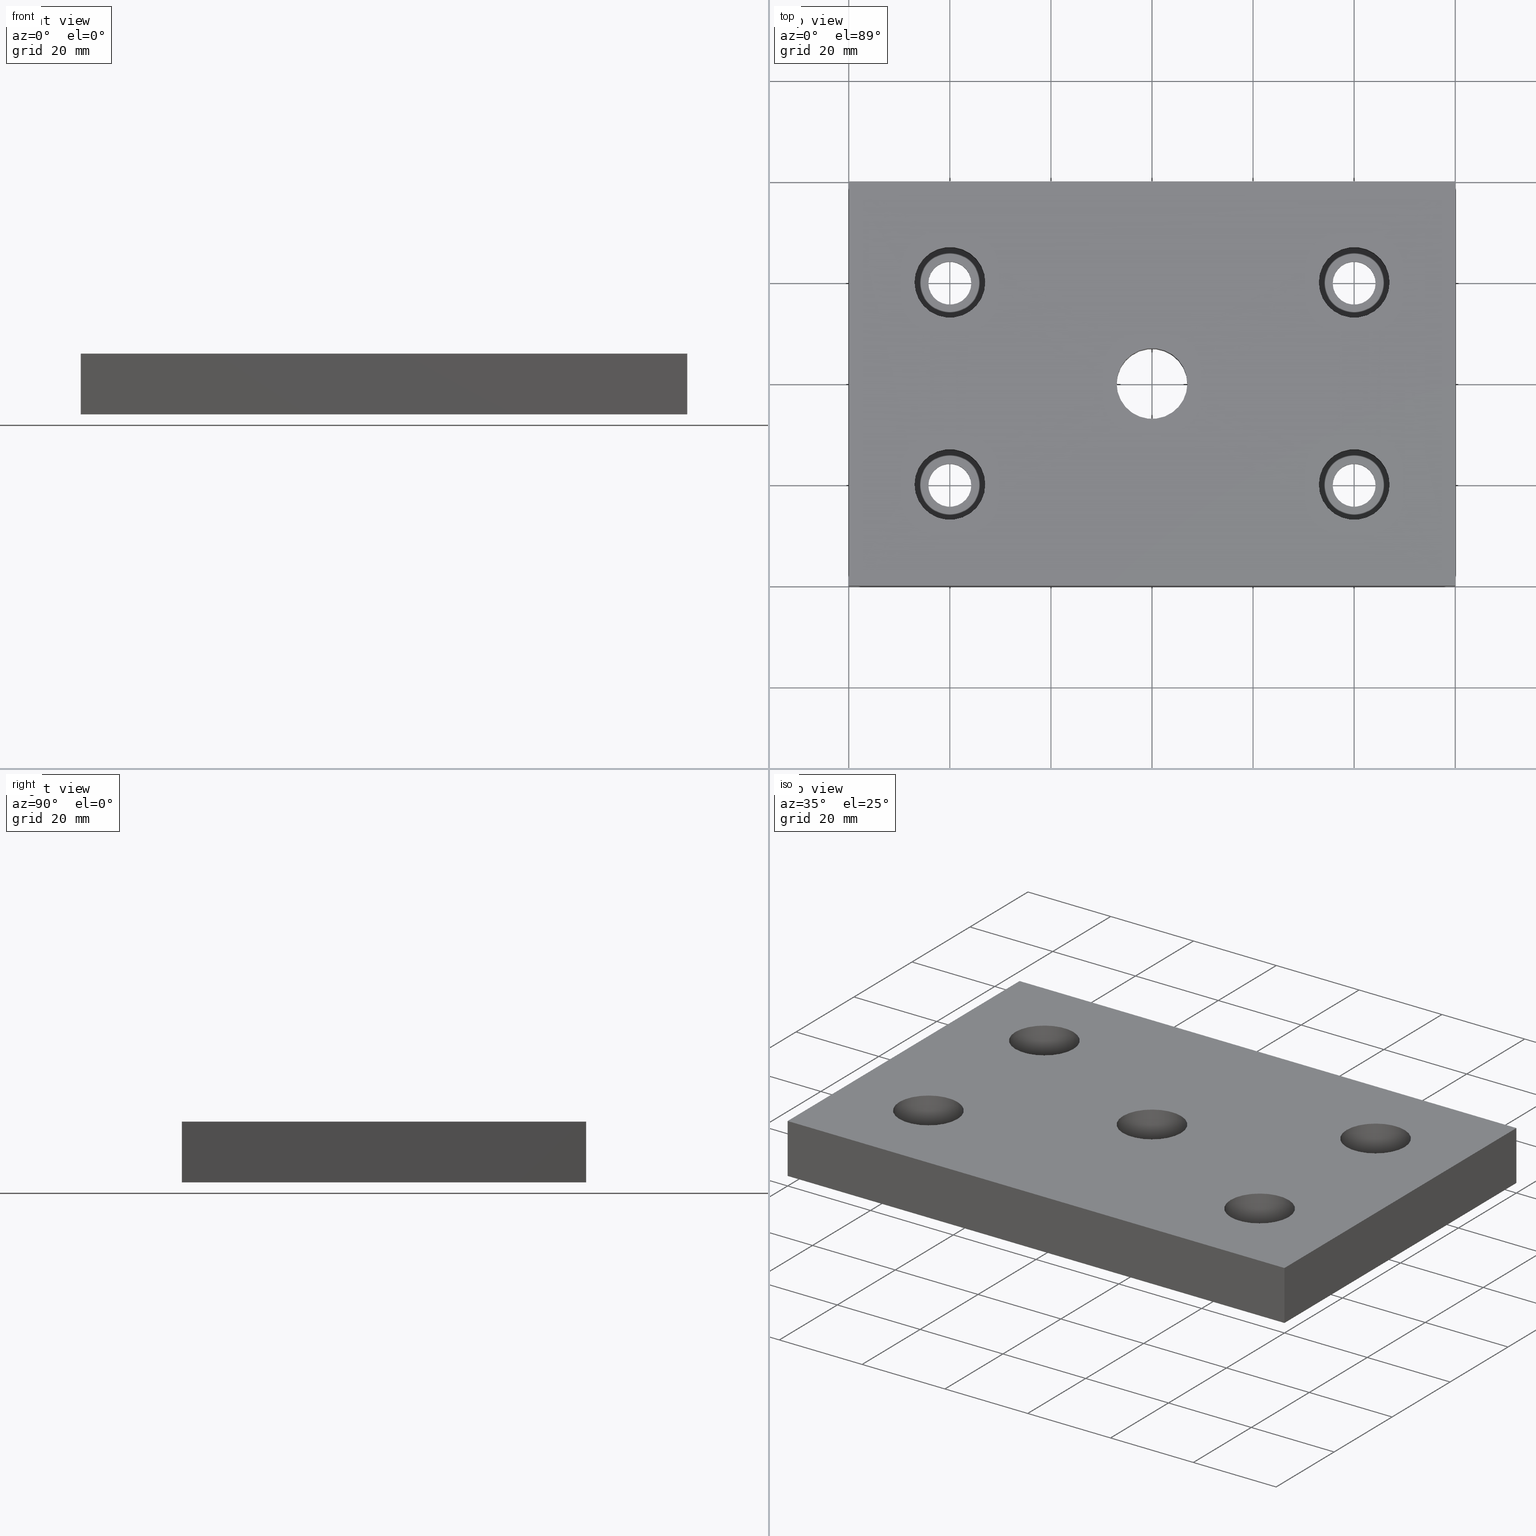
[diagram: canonical four-view strip — front | top / right | iso, engineering-drawing reading convention]
A machine part, canonical four-view strip (front | top / right | iso — engineering-drawing reading convention). The complete STEP part file that produces these views, byte-faithful:
ISO-10303-21;
HEADER;
/****************************************************************
 * Generated by software with PDE/Lib inside                    *
 * PDElib Version v4.4, created Mon 02/23/2004                  *
 * International Technegroup Inc. (www.iti-oh.com)              *
 ****************************************************************/
FILE_DESCRIPTION(('STEP AP203'),'2;1');
FILE_NAME('31.009.00.stp','2011-03-21T16:23:46',(''),(''),'2009.3.110','THINKDESIGN','');
FILE_SCHEMA(('CONFIG_CONTROL_DESIGN'));
ENDSEC;
DATA;
#2=CARTESIAN_POINT('',(59.999986679760013,-39.999991119839706,12.0));
#3=DIRECTION('',(-1.0,0.0,0.0));
#4=DIRECTION('',(0.0,1.0,0.0));
#5=AXIS2_PLACEMENT_3D('',#2,#3,#4);
#6=PLANE('',#5);
#7=CARTESIAN_POINT('',(59.999986679760013,-39.999991119839706,12.0));
#8=VERTEX_POINT('',#7);
#9=CARTESIAN_POINT('',(59.999986679760013,-39.999991119839706,0.0));
#10=VERTEX_POINT('',#9);
#11=CARTESIAN_POINT('',(59.999986679760013,-39.999991119839706,12.0));
#12=DIRECTION('',(0.0,0.0,-1.0));
#13=VECTOR('',#12,12.0);
#14=LINE('',#11,#13);
#15=EDGE_CURVE('',#8,#10,#14,.T.);
#16=ORIENTED_EDGE('',*,*,#15,.T.);
#17=CARTESIAN_POINT('',(59.999986679760013,39.999991119840161,0.0));
#18=VERTEX_POINT('',#17);
#19=CARTESIAN_POINT('',(59.999986679760013,-39.999991119839706,0.0));
#20=DIRECTION('',(0.0,1.0,0.0));
#21=VECTOR('',#20,79.999982239679866);
#22=LINE('',#19,#21);
#23=EDGE_CURVE('',#10,#18,#22,.T.);
#24=ORIENTED_EDGE('',*,*,#23,.T.);
#25=CARTESIAN_POINT('',(59.999986679760013,39.999991119840161,12.0));
#26=VERTEX_POINT('',#25);
#27=CARTESIAN_POINT('',(59.999986679760013,39.999991119840161,12.0));
#28=DIRECTION('',(0.0,0.0,-1.0));
#29=VECTOR('',#28,12.0);
#30=LINE('',#27,#29);
#31=EDGE_CURVE('',#26,#18,#30,.T.);
#32=ORIENTED_EDGE('',*,*,#31,.F.);
#33=CARTESIAN_POINT('',(59.999986679760013,-39.999991119839706,12.0));
#34=DIRECTION('',(0.0,1.0,0.0));
#35=VECTOR('',#34,79.999982239679866);
#36=LINE('',#33,#35);
#37=EDGE_CURVE('',#8,#26,#36,.T.);
#38=ORIENTED_EDGE('',*,*,#37,.F.);
#39=EDGE_LOOP('',(#16,#24,#32,#38));
#40=FACE_OUTER_BOUND('',#39,.T.);
#41=ADVANCED_FACE('',(#40),#6,.F.);
#42=CARTESIAN_POINT('',(59.999986679760013,39.999991119840161,12.0));
#43=DIRECTION('',(0.0,-1.0,0.0));
#44=DIRECTION('',(-1.0,0.0,0.0));
#45=AXIS2_PLACEMENT_3D('',#42,#43,#44);
#46=PLANE('',#45);
#47=ORIENTED_EDGE('',*,*,#31,.T.);
#48=CARTESIAN_POINT('',(-59.999986679760013,39.999991119840161,0.0));
#49=VERTEX_POINT('',#48);
#50=CARTESIAN_POINT('',(59.999986679760013,39.999991119840161,0.0));
#51=DIRECTION('',(-1.0,0.0,0.0));
#52=VECTOR('',#51,119.999973359520030);
#53=LINE('',#50,#52);
#54=EDGE_CURVE('',#18,#49,#53,.T.);
#55=ORIENTED_EDGE('',*,*,#54,.T.);
#56=CARTESIAN_POINT('',(-59.999986679760013,39.999991119840161,12.0));
#57=VERTEX_POINT('',#56);
#58=CARTESIAN_POINT('',(-59.999986679760013,39.999991119840161,12.0));
#59=DIRECTION('',(0.0,0.0,-1.0));
#60=VECTOR('',#59,12.0);
#61=LINE('',#58,#60);
#62=EDGE_CURVE('',#57,#49,#61,.T.);
#63=ORIENTED_EDGE('',*,*,#62,.F.);
#64=CARTESIAN_POINT('',(59.999986679760013,39.999991119840161,12.0));
#65=DIRECTION('',(-1.0,0.0,0.0));
#66=VECTOR('',#65,119.999973359520030);
#67=LINE('',#64,#66);
#68=EDGE_CURVE('',#26,#57,#67,.T.);
#69=ORIENTED_EDGE('',*,*,#68,.F.);
#70=EDGE_LOOP('',(#47,#55,#63,#69));
#71=FACE_OUTER_BOUND('',#70,.T.);
#72=ADVANCED_FACE('',(#71),#46,.F.);
#73=CARTESIAN_POINT('',(-59.999986679760013,39.999991119840161,12.0));
#74=DIRECTION('',(1.0,0.0,0.0));
#75=DIRECTION('',(0.0,-1.0,0.0));
#76=AXIS2_PLACEMENT_3D('',#73,#74,#75);
#77=PLANE('',#76);
#78=ORIENTED_EDGE('',*,*,#62,.T.);
#79=CARTESIAN_POINT('',(-59.999986679760013,-39.999991119839706,0.0));
#80=VERTEX_POINT('',#79);
#81=CARTESIAN_POINT('',(-59.999986679760013,39.999991119840161,0.0));
#82=DIRECTION('',(0.0,-1.0,0.0));
#83=VECTOR('',#82,79.999982239679866);
#84=LINE('',#81,#83);
#85=EDGE_CURVE('',#49,#80,#84,.T.);
#86=ORIENTED_EDGE('',*,*,#85,.T.);
#87=CARTESIAN_POINT('',(-59.999986679760013,-39.999991119839706,12.0));
#88=VERTEX_POINT('',#87);
#89=CARTESIAN_POINT('',(-59.999986679760013,-39.999991119839706,12.0));
#90=DIRECTION('',(0.0,0.0,-1.0));
#91=VECTOR('',#90,12.0);
#92=LINE('',#89,#91);
#93=EDGE_CURVE('',#88,#80,#92,.T.);
#94=ORIENTED_EDGE('',*,*,#93,.F.);
#95=CARTESIAN_POINT('',(-59.999986679760013,39.999991119840161,12.0));
#96=DIRECTION('',(0.0,-1.0,0.0));
#97=VECTOR('',#96,79.999982239679866);
#98=LINE('',#95,#97);
#99=EDGE_CURVE('',#57,#88,#98,.T.);
#100=ORIENTED_EDGE('',*,*,#99,.F.);
#101=EDGE_LOOP('',(#78,#86,#94,#100));
#102=FACE_OUTER_BOUND('',#101,.T.);
#103=ADVANCED_FACE('',(#102),#77,.F.);
#104=CARTESIAN_POINT('',(-59.999986679760013,-39.999991119839706,12.0));
#105=DIRECTION('',(0.0,1.0,0.0));
#106=DIRECTION('',(1.0,0.0,0.0));
#107=AXIS2_PLACEMENT_3D('',#104,#105,#106);
#108=PLANE('',#107);
#109=ORIENTED_EDGE('',*,*,#93,.T.);
#110=CARTESIAN_POINT('',(-59.999986679760013,-39.999991119839706,0.0));
#111=DIRECTION('',(1.0,0.0,0.0));
#112=VECTOR('',#111,119.999973359520030);
#113=LINE('',#110,#112);
#114=EDGE_CURVE('',#80,#10,#113,.T.);
#115=ORIENTED_EDGE('',*,*,#114,.T.);
#116=ORIENTED_EDGE('',*,*,#15,.F.);
#117=CARTESIAN_POINT('',(-59.999986679760013,-39.999991119839706,12.0));
#118=DIRECTION('',(1.0,0.0,0.0));
#119=VECTOR('',#118,119.999973359520030);
#120=LINE('',#117,#119);
#121=EDGE_CURVE('',#88,#8,#120,.T.);
#122=ORIENTED_EDGE('',*,*,#121,.F.);
#123=EDGE_LOOP('',(#109,#115,#116,#122));
#124=FACE_OUTER_BOUND('',#123,.T.);
#125=ADVANCED_FACE('',(#124),#108,.F.);
#126=CARTESIAN_POINT('',(-71.999988748835221,-47.999994076735220,12.0));
#127=DIRECTION('',(0.0,0.0,1.0));
#128=DIRECTION('',(1.0,0.0,0.0));
#129=AXIS2_PLACEMENT_3D('',#126,#127,#128);
#130=PLANE('',#129);
#131=ORIENTED_EDGE('',*,*,#37,.T.);
#132=ORIENTED_EDGE('',*,*,#68,.T.);
#133=ORIENTED_EDGE('',*,*,#99,.T.);
#134=ORIENTED_EDGE('',*,*,#121,.T.);
#135=EDGE_LOOP('',(#131,#132,#133,#134));
#136=FACE_OUTER_BOUND('',#135,.T.);
#137=CARTESIAN_POINT('',(-7.0,0.0,12.0));
#138=VERTEX_POINT('',#137);
#139=CARTESIAN_POINT('',(7.0,0.0,12.0));
#140=VERTEX_POINT('',#139);
#141=CARTESIAN_POINT('',(0.0,0.0,12.0));
#142=DIRECTION('',(0.0,0.0,1.0));
#143=DIRECTION('',(1.0,0.0,0.0));
#144=AXIS2_PLACEMENT_3D('',#141,#142,#143);
#145=CIRCLE('',#144,7.0);
#146=EDGE_CURVE('',#138,#140,#145,.T.);
#147=ORIENTED_EDGE('',*,*,#146,.F.);
#148=CARTESIAN_POINT('',(0.0,0.0,12.0));
#149=DIRECTION('',(0.0,0.0,1.0));
#150=DIRECTION('',(1.0,0.0,0.0));
#151=AXIS2_PLACEMENT_3D('',#148,#149,#150);
#152=CIRCLE('',#151,7.0);
#153=EDGE_CURVE('',#140,#138,#152,.T.);
#154=ORIENTED_EDGE('',*,*,#153,.F.);
#155=EDGE_LOOP('',(#147,#154));
#156=FACE_BOUND('',#155,.T.);
#157=CARTESIAN_POINT('',(-46.999991119840161,19.999995559920080,12.0));
#158=VERTEX_POINT('',#157);
#159=CARTESIAN_POINT('',(-32.999991119840161,19.999995559920080,11.999999999999998));
#160=VERTEX_POINT('',#159);
#161=CARTESIAN_POINT('',(-39.999991119840161,19.999995559920080,12.0));
#162=DIRECTION('',(0.0,6.123234E-017,1.0));
#163=DIRECTION('',(1.0,0.0,0.0));
#164=AXIS2_PLACEMENT_3D('',#161,#162,#163);
#165=CIRCLE('',#164,7.0);
#166=EDGE_CURVE('',#158,#160,#165,.T.);
#167=ORIENTED_EDGE('',*,*,#166,.F.);
#168=CARTESIAN_POINT('',(-39.999991119840161,19.999995559920080,12.0));
#169=DIRECTION('',(0.0,6.123234E-017,1.0));
#170=DIRECTION('',(1.0,0.0,0.0));
#171=AXIS2_PLACEMENT_3D('',#168,#169,#170);
#172=CIRCLE('',#171,7.0);
#173=EDGE_CURVE('',#160,#158,#172,.T.);
#174=ORIENTED_EDGE('',*,*,#173,.F.);
#175=EDGE_LOOP('',(#167,#174));
#176=FACE_BOUND('',#175,.T.);
#177=CARTESIAN_POINT('',(32.999991119839933,19.999995559920080,12.0));
#178=VERTEX_POINT('',#177);
#179=CARTESIAN_POINT('',(46.999991119839933,19.999995559920080,11.999999999999998));
#180=VERTEX_POINT('',#179);
#181=CARTESIAN_POINT('',(39.999991119839933,19.999995559920080,12.0));
#182=DIRECTION('',(0.0,6.123234E-017,1.0));
#183=DIRECTION('',(1.0,0.0,0.0));
#184=AXIS2_PLACEMENT_3D('',#181,#182,#183);
#185=CIRCLE('',#184,7.0);
#186=EDGE_CURVE('',#178,#180,#185,.T.);
#187=ORIENTED_EDGE('',*,*,#186,.F.);
#188=CARTESIAN_POINT('',(39.999991119839933,19.999995559920080,12.0));
#189=DIRECTION('',(0.0,6.123234E-017,1.0));
#190=DIRECTION('',(1.0,0.0,0.0));
#191=AXIS2_PLACEMENT_3D('',#188,#189,#190);
#192=CIRCLE('',#191,7.0);
#193=EDGE_CURVE('',#180,#178,#192,.T.);
#194=ORIENTED_EDGE('',*,*,#193,.F.);
#195=EDGE_LOOP('',(#187,#194));
#196=FACE_BOUND('',#195,.T.);
#197=CARTESIAN_POINT('',(32.999991119839933,-19.999995559919626,12.0));
#198=VERTEX_POINT('',#197);
#199=CARTESIAN_POINT('',(46.999991119839933,-19.999995559919626,11.999999999999998));
#200=VERTEX_POINT('',#199);
#201=CARTESIAN_POINT('',(39.999991119839933,-19.999995559919626,12.0));
#202=DIRECTION('',(0.0,6.123234E-017,1.0));
#203=DIRECTION('',(1.0,0.0,0.0));
#204=AXIS2_PLACEMENT_3D('',#201,#202,#203);
#205=CIRCLE('',#204,7.0);
#206=EDGE_CURVE('',#198,#200,#205,.T.);
#207=ORIENTED_EDGE('',*,*,#206,.F.);
#208=CARTESIAN_POINT('',(39.999991119839933,-19.999995559919626,12.0));
#209=DIRECTION('',(0.0,6.123234E-017,1.0));
#210=DIRECTION('',(1.0,0.0,0.0));
#211=AXIS2_PLACEMENT_3D('',#208,#209,#210);
#212=CIRCLE('',#211,7.0);
#213=EDGE_CURVE('',#200,#198,#212,.T.);
#214=ORIENTED_EDGE('',*,*,#213,.F.);
#215=EDGE_LOOP('',(#207,#214));
#216=FACE_BOUND('',#215,.T.);
#217=CARTESIAN_POINT('',(-46.999991119840161,-19.999995559919626,12.0));
#218=VERTEX_POINT('',#217);
#219=CARTESIAN_POINT('',(-32.999991119840161,-19.999995559919626,11.999999999999998));
#220=VERTEX_POINT('',#219);
#221=CARTESIAN_POINT('',(-39.999991119840161,-19.999995559919626,12.0));
#222=DIRECTION('',(0.0,6.123234E-017,1.0));
#223=DIRECTION('',(1.0,0.0,0.0));
#224=AXIS2_PLACEMENT_3D('',#221,#222,#223);
#225=CIRCLE('',#224,7.0);
#226=EDGE_CURVE('',#218,#220,#225,.T.);
#227=ORIENTED_EDGE('',*,*,#226,.F.);
#228=CARTESIAN_POINT('',(-39.999991119840161,-19.999995559919626,12.0));
#229=DIRECTION('',(0.0,6.123234E-017,1.0));
#230=DIRECTION('',(1.0,0.0,0.0));
#231=AXIS2_PLACEMENT_3D('',#228,#229,#230);
#232=CIRCLE('',#231,7.0);
#233=EDGE_CURVE('',#220,#218,#232,.T.);
#234=ORIENTED_EDGE('',*,*,#233,.F.);
#235=EDGE_LOOP('',(#227,#234));
#236=FACE_BOUND('',#235,.T.);
#237=ADVANCED_FACE('',(#136,#156,#176,#196,#216,#236),#130,.T.);
#238=CARTESIAN_POINT('',(-71.999988748835221,-47.999994076735220,0.0));
#239=DIRECTION('',(0.0,0.0,1.0));
#240=DIRECTION('',(1.0,0.0,0.0));
#241=AXIS2_PLACEMENT_3D('',#238,#239,#240);
#242=PLANE('',#241);
#243=ORIENTED_EDGE('',*,*,#114,.F.);
#244=ORIENTED_EDGE('',*,*,#85,.F.);
#245=ORIENTED_EDGE('',*,*,#54,.F.);
#246=ORIENTED_EDGE('',*,*,#23,.F.);
#247=EDGE_LOOP('',(#243,#244,#245,#246));
#248=FACE_OUTER_BOUND('',#247,.T.);
#249=CARTESIAN_POINT('',(-7.0,0.0,0.0));
#250=VERTEX_POINT('',#249);
#251=CARTESIAN_POINT('',(7.0,0.0,0.0));
#252=VERTEX_POINT('',#251);
#253=CARTESIAN_POINT('',(0.0,0.0,0.0));
#254=DIRECTION('',(0.0,0.0,-1.0));
#255=DIRECTION('',(1.0,0.0,0.0));
#256=AXIS2_PLACEMENT_3D('',#253,#254,#255);
#257=CIRCLE('',#256,7.0);
#258=EDGE_CURVE('',#250,#252,#257,.T.);
#259=ORIENTED_EDGE('',*,*,#258,.F.);
#260=CARTESIAN_POINT('',(0.0,0.0,0.0));
#261=DIRECTION('',(0.0,0.0,-1.0));
#262=DIRECTION('',(1.0,0.0,0.0));
#263=AXIS2_PLACEMENT_3D('',#260,#261,#262);
#264=CIRCLE('',#263,7.0);
#265=EDGE_CURVE('',#252,#250,#264,.T.);
#266=ORIENTED_EDGE('',*,*,#265,.F.);
#267=EDGE_LOOP('',(#259,#266));
#268=FACE_BOUND('',#267,.T.);
#269=CARTESIAN_POINT('',(-35.749991119840161,19.999995559920080,0.0));
#270=VERTEX_POINT('',#269);
#271=CARTESIAN_POINT('',(-44.249991119840161,19.999995559920080,0.0));
#272=VERTEX_POINT('',#271);
#273=CARTESIAN_POINT('',(-39.999991119840161,19.999995559920080,0.0));
#274=DIRECTION('',(0.0,6.123234E-017,1.0));
#275=DIRECTION('',(1.0,0.0,0.0));
#276=AXIS2_PLACEMENT_3D('',#273,#274,#275);
#277=CIRCLE('',#276,4.250000000000000);
#278=EDGE_CURVE('',#270,#272,#277,.T.);
#279=ORIENTED_EDGE('',*,*,#278,.T.);
#280=CARTESIAN_POINT('',(-39.999991119840161,19.999995559920080,0.0));
#281=DIRECTION('',(0.0,6.123234E-017,1.0));
#282=DIRECTION('',(1.0,0.0,0.0));
#283=AXIS2_PLACEMENT_3D('',#280,#281,#282);
#284=CIRCLE('',#283,4.250000000000000);
#285=EDGE_CURVE('',#272,#270,#284,.T.);
#286=ORIENTED_EDGE('',*,*,#285,.T.);
#287=EDGE_LOOP('',(#279,#286));
#288=FACE_BOUND('',#287,.T.);
#289=CARTESIAN_POINT('',(44.249991119839933,19.999995559920080,0.0));
#290=VERTEX_POINT('',#289);
#291=CARTESIAN_POINT('',(35.749991119839933,19.999995559920080,0.0));
#292=VERTEX_POINT('',#291);
#293=CARTESIAN_POINT('',(39.999991119839933,19.999995559920080,0.0));
#294=DIRECTION('',(0.0,6.123234E-017,1.0));
#295=DIRECTION('',(1.0,0.0,0.0));
#296=AXIS2_PLACEMENT_3D('',#293,#294,#295);
#297=CIRCLE('',#296,4.250000000000000);
#298=EDGE_CURVE('',#290,#292,#297,.T.);
#299=ORIENTED_EDGE('',*,*,#298,.T.);
#300=CARTESIAN_POINT('',(39.999991119839933,19.999995559920080,0.0));
#301=DIRECTION('',(0.0,6.123234E-017,1.0));
#302=DIRECTION('',(1.0,0.0,0.0));
#303=AXIS2_PLACEMENT_3D('',#300,#301,#302);
#304=CIRCLE('',#303,4.250000000000000);
#305=EDGE_CURVE('',#292,#290,#304,.T.);
#306=ORIENTED_EDGE('',*,*,#305,.T.);
#307=EDGE_LOOP('',(#299,#306));
#308=FACE_BOUND('',#307,.T.);
#309=CARTESIAN_POINT('',(44.249991119839933,-19.999995559919626,0.0));
#310=VERTEX_POINT('',#309);
#311=CARTESIAN_POINT('',(35.749991119839933,-19.999995559919626,0.0));
#312=VERTEX_POINT('',#311);
#313=CARTESIAN_POINT('',(39.999991119839933,-19.999995559919626,0.0));
#314=DIRECTION('',(0.0,6.123234E-017,1.0));
#315=DIRECTION('',(1.0,0.0,0.0));
#316=AXIS2_PLACEMENT_3D('',#313,#314,#315);
#317=CIRCLE('',#316,4.250000000000000);
#318=EDGE_CURVE('',#310,#312,#317,.T.);
#319=ORIENTED_EDGE('',*,*,#318,.T.);
#320=CARTESIAN_POINT('',(39.999991119839933,-19.999995559919626,0.0));
#321=DIRECTION('',(0.0,6.123234E-017,1.0));
#322=DIRECTION('',(1.0,0.0,0.0));
#323=AXIS2_PLACEMENT_3D('',#320,#321,#322);
#324=CIRCLE('',#323,4.250000000000000);
#325=EDGE_CURVE('',#312,#310,#324,.T.);
#326=ORIENTED_EDGE('',*,*,#325,.T.);
#327=EDGE_LOOP('',(#319,#326));
#328=FACE_BOUND('',#327,.T.);
#329=CARTESIAN_POINT('',(-35.749991119840161,-19.999995559919626,0.0));
#330=VERTEX_POINT('',#329);
#331=CARTESIAN_POINT('',(-44.249991119840161,-19.999995559919626,0.0));
#332=VERTEX_POINT('',#331);
#333=CARTESIAN_POINT('',(-39.999991119840161,-19.999995559919626,0.0));
#334=DIRECTION('',(0.0,6.123234E-017,1.0));
#335=DIRECTION('',(1.0,0.0,0.0));
#336=AXIS2_PLACEMENT_3D('',#333,#334,#335);
#337=CIRCLE('',#336,4.250000000000000);
#338=EDGE_CURVE('',#330,#332,#337,.T.);
#339=ORIENTED_EDGE('',*,*,#338,.T.);
#340=CARTESIAN_POINT('',(-39.999991119840161,-19.999995559919626,0.0));
#341=DIRECTION('',(0.0,6.123234E-017,1.0));
#342=DIRECTION('',(1.0,0.0,0.0));
#343=AXIS2_PLACEMENT_3D('',#340,#341,#342);
#344=CIRCLE('',#343,4.250000000000000);
#345=EDGE_CURVE('',#332,#330,#344,.T.);
#346=ORIENTED_EDGE('',*,*,#345,.T.);
#347=EDGE_LOOP('',(#339,#346));
#348=FACE_BOUND('',#347,.T.);
#349=ADVANCED_FACE('',(#248,#268,#288,#308,#328,#348),#242,.F.);
#350=CARTESIAN_POINT('',(0.0,0.0,12.0));
#351=DIRECTION('',(0.0,0.0,1.0));
#352=DIRECTION('',(1.0,0.0,0.0));
#353=AXIS2_PLACEMENT_3D('',#350,#351,#352);
#354=CYLINDRICAL_SURFACE('',#353,7.0);
#355=CARTESIAN_POINT('',(7.0,0.0,12.0));
#356=DIRECTION('',(0.0,0.0,-1.0));
#357=VECTOR('',#356,12.0);
#358=LINE('',#355,#357);
#359=EDGE_CURVE('',#140,#252,#358,.T.);
#360=ORIENTED_EDGE('',*,*,#359,.T.);
#361=ORIENTED_EDGE('',*,*,#265,.T.);
#362=ORIENTED_EDGE('',*,*,#258,.T.);
#363=ORIENTED_EDGE('',*,*,#359,.F.);
#364=ORIENTED_EDGE('',*,*,#153,.T.);
#365=ORIENTED_EDGE('',*,*,#146,.T.);
#366=EDGE_LOOP('',(#360,#361,#362,#363,#364,#365));
#367=FACE_OUTER_BOUND('',#366,.T.);
#368=ADVANCED_FACE('',(#367),#354,.F.);
#369=CARTESIAN_POINT('',(-39.999991119840161,19.999995559920080,-1.209819030761725));
#370=DIRECTION('',(0.0,6.123234E-017,1.0));
#371=DIRECTION('',(1.0,0.0,0.0));
#372=AXIS2_PLACEMENT_3D('',#369,#370,#371);
#373=CYLINDRICAL_SURFACE('',#372,4.250000000000000);
#374=CARTESIAN_POINT('',(-35.749991119840161,19.999995559920080,3.999999999999998));
#375=VERTEX_POINT('',#374);
#376=CARTESIAN_POINT('',(-35.749991119840161,19.999995559920080,0.0));
#377=DIRECTION('',(0.0,0.0,1.0));
#378=VECTOR('',#377,3.999999999999998);
#379=LINE('',#376,#378);
#380=EDGE_CURVE('',#270,#375,#379,.T.);
#381=ORIENTED_EDGE('',*,*,#380,.F.);
#382=ORIENTED_EDGE('',*,*,#285,.F.);
#383=ORIENTED_EDGE('',*,*,#278,.F.);
#384=ORIENTED_EDGE('',*,*,#380,.T.);
#385=CARTESIAN_POINT('',(-44.249991119840161,19.999995559920080,4.000000000000000));
#386=VERTEX_POINT('',#385);
#387=CARTESIAN_POINT('',(-39.999991119840161,19.999995559920080,4.000000000000000));
#388=DIRECTION('',(0.0,6.123234E-017,1.0));
#389=DIRECTION('',(1.0,0.0,0.0));
#390=AXIS2_PLACEMENT_3D('',#387,#388,#389);
#391=CIRCLE('',#390,4.250000000000000);
#392=EDGE_CURVE('',#375,#386,#391,.T.);
#393=ORIENTED_EDGE('',*,*,#392,.T.);
#394=CARTESIAN_POINT('',(-39.999991119840161,19.999995559920080,4.000000000000000));
#395=DIRECTION('',(0.0,6.123234E-017,1.0));
#396=DIRECTION('',(1.0,0.0,0.0));
#397=AXIS2_PLACEMENT_3D('',#394,#395,#396);
#398=CIRCLE('',#397,4.250000000000000);
#399=EDGE_CURVE('',#386,#375,#398,.T.);
#400=ORIENTED_EDGE('',*,*,#399,.T.);
#401=EDGE_LOOP('',(#381,#382,#383,#384,#393,#400));
#402=FACE_OUTER_BOUND('',#401,.T.);
#403=ADVANCED_FACE('',(#402),#373,.F.);
#404=CARTESIAN_POINT('',(-53.999991119840161,5.999995559920080,4.000000000000001));
#405=DIRECTION('',(0.0,0.0,-1.0));
#406=DIRECTION('',(0.0,1.0,0.0));
#407=AXIS2_PLACEMENT_3D('',#404,#405,#406);
#408=PLANE('',#407);
#409=CARTESIAN_POINT('',(-32.999991119840161,19.999995559920080,4.0));
#410=VERTEX_POINT('',#409);
#411=CARTESIAN_POINT('',(-46.999991119840161,19.999995559920080,4.000000000000000));
#412=VERTEX_POINT('',#411);
#413=CARTESIAN_POINT('',(-39.999991119840161,19.999995559920080,4.000000000000000));
#414=DIRECTION('',(0.0,6.123234E-017,1.0));
#415=DIRECTION('',(1.0,0.0,0.0));
#416=AXIS2_PLACEMENT_3D('',#413,#414,#415);
#417=CIRCLE('',#416,7.0);
#418=EDGE_CURVE('',#410,#412,#417,.T.);
#419=ORIENTED_EDGE('',*,*,#418,.T.);
#420=CARTESIAN_POINT('',(-39.999991119840161,19.999995559920080,4.000000000000000));
#421=DIRECTION('',(0.0,6.123234E-017,1.0));
#422=DIRECTION('',(1.0,0.0,0.0));
#423=AXIS2_PLACEMENT_3D('',#420,#421,#422);
#424=CIRCLE('',#423,7.0);
#425=EDGE_CURVE('',#412,#410,#424,.T.);
#426=ORIENTED_EDGE('',*,*,#425,.T.);
#427=EDGE_LOOP('',(#419,#426));
#428=FACE_OUTER_BOUND('',#427,.T.);
#429=ORIENTED_EDGE('',*,*,#399,.F.);
#430=ORIENTED_EDGE('',*,*,#392,.F.);
#431=EDGE_LOOP('',(#429,#430));
#432=FACE_BOUND('',#431,.T.);
#433=ADVANCED_FACE('',(#428,#432),#408,.F.);
#434=CARTESIAN_POINT('',(-39.999991119840161,19.999995559920080,4.0));
#435=DIRECTION('',(0.0,6.123234E-017,1.0));
#436=DIRECTION('',(1.0,0.0,0.0));
#437=AXIS2_PLACEMENT_3D('',#434,#435,#436);
#438=CYLINDRICAL_SURFACE('',#437,7.0);
#439=CARTESIAN_POINT('',(-32.999991119840161,19.999995559920080,4.0));
#440=DIRECTION('',(0.0,0.0,1.0));
#441=VECTOR('',#440,7.999999999999998);
#442=LINE('',#439,#441);
#443=EDGE_CURVE('',#410,#160,#442,.T.);
#444=ORIENTED_EDGE('',*,*,#443,.T.);
#445=ORIENTED_EDGE('',*,*,#173,.T.);
#446=ORIENTED_EDGE('',*,*,#166,.T.);
#447=ORIENTED_EDGE('',*,*,#443,.F.);
#448=ORIENTED_EDGE('',*,*,#425,.F.);
#449=ORIENTED_EDGE('',*,*,#418,.F.);
#450=EDGE_LOOP('',(#444,#445,#446,#447,#448,#449));
#451=FACE_OUTER_BOUND('',#450,.T.);
#452=ADVANCED_FACE('',(#451),#438,.F.);
#453=CARTESIAN_POINT('',(39.999991119839933,19.999995559920080,-1.209819030761725));
#454=DIRECTION('',(0.0,6.123234E-017,1.0));
#455=DIRECTION('',(1.0,0.0,0.0));
#456=AXIS2_PLACEMENT_3D('',#453,#454,#455);
#457=CYLINDRICAL_SURFACE('',#456,4.250000000000000);
#458=CARTESIAN_POINT('',(44.249991119839933,19.999995559920080,3.999999999999998));
#459=VERTEX_POINT('',#458);
#460=CARTESIAN_POINT('',(44.249991119839933,19.999995559920080,0.0));
#461=DIRECTION('',(0.0,0.0,1.0));
#462=VECTOR('',#461,3.999999999999998);
#463=LINE('',#460,#462);
#464=EDGE_CURVE('',#290,#459,#463,.T.);
#465=ORIENTED_EDGE('',*,*,#464,.F.);
#466=ORIENTED_EDGE('',*,*,#305,.F.);
#467=ORIENTED_EDGE('',*,*,#298,.F.);
#468=ORIENTED_EDGE('',*,*,#464,.T.);
#469=CARTESIAN_POINT('',(35.749991119839933,19.999995559920080,4.000000000000000));
#470=VERTEX_POINT('',#469);
#471=CARTESIAN_POINT('',(39.999991119839933,19.999995559920080,4.000000000000000));
#472=DIRECTION('',(0.0,6.123234E-017,1.0));
#473=DIRECTION('',(1.0,0.0,0.0));
#474=AXIS2_PLACEMENT_3D('',#471,#472,#473);
#475=CIRCLE('',#474,4.250000000000000);
#476=EDGE_CURVE('',#459,#470,#475,.T.);
#477=ORIENTED_EDGE('',*,*,#476,.T.);
#478=CARTESIAN_POINT('',(39.999991119839933,19.999995559920080,4.000000000000000));
#479=DIRECTION('',(0.0,6.123234E-017,1.0));
#480=DIRECTION('',(1.0,0.0,0.0));
#481=AXIS2_PLACEMENT_3D('',#478,#479,#480);
#482=CIRCLE('',#481,4.250000000000000);
#483=EDGE_CURVE('',#470,#459,#482,.T.);
#484=ORIENTED_EDGE('',*,*,#483,.T.);
#485=EDGE_LOOP('',(#465,#466,#467,#468,#477,#484));
#486=FACE_OUTER_BOUND('',#485,.T.);
#487=ADVANCED_FACE('',(#486),#457,.F.);
#488=CARTESIAN_POINT('',(25.999991119839933,5.999995559920080,4.000000000000001));
#489=DIRECTION('',(0.0,0.0,-1.0));
#490=DIRECTION('',(0.0,1.0,0.0));
#491=AXIS2_PLACEMENT_3D('',#488,#489,#490);
#492=PLANE('',#491);
#493=CARTESIAN_POINT('',(46.999991119839933,19.999995559920080,4.0));
#494=VERTEX_POINT('',#493);
#495=CARTESIAN_POINT('',(32.999991119839933,19.999995559920080,4.000000000000000));
#496=VERTEX_POINT('',#495);
#497=CARTESIAN_POINT('',(39.999991119839933,19.999995559920080,4.000000000000000));
#498=DIRECTION('',(0.0,6.123234E-017,1.0));
#499=DIRECTION('',(1.0,0.0,0.0));
#500=AXIS2_PLACEMENT_3D('',#497,#498,#499);
#501=CIRCLE('',#500,7.0);
#502=EDGE_CURVE('',#494,#496,#501,.T.);
#503=ORIENTED_EDGE('',*,*,#502,.T.);
#504=CARTESIAN_POINT('',(39.999991119839933,19.999995559920080,4.000000000000000));
#505=DIRECTION('',(0.0,6.123234E-017,1.0));
#506=DIRECTION('',(1.0,0.0,0.0));
#507=AXIS2_PLACEMENT_3D('',#504,#505,#506);
#508=CIRCLE('',#507,7.0);
#509=EDGE_CURVE('',#496,#494,#508,.T.);
#510=ORIENTED_EDGE('',*,*,#509,.T.);
#511=EDGE_LOOP('',(#503,#510));
#512=FACE_OUTER_BOUND('',#511,.T.);
#513=ORIENTED_EDGE('',*,*,#483,.F.);
#514=ORIENTED_EDGE('',*,*,#476,.F.);
#515=EDGE_LOOP('',(#513,#514));
#516=FACE_BOUND('',#515,.T.);
#517=ADVANCED_FACE('',(#512,#516),#492,.F.);
#518=CARTESIAN_POINT('',(39.999991119839933,19.999995559920080,4.0));
#519=DIRECTION('',(0.0,6.123234E-017,1.0));
#520=DIRECTION('',(1.0,0.0,0.0));
#521=AXIS2_PLACEMENT_3D('',#518,#519,#520);
#522=CYLINDRICAL_SURFACE('',#521,7.0);
#523=CARTESIAN_POINT('',(46.999991119839933,19.999995559920080,4.0));
#524=DIRECTION('',(0.0,0.0,1.0));
#525=VECTOR('',#524,7.999999999999998);
#526=LINE('',#523,#525);
#527=EDGE_CURVE('',#494,#180,#526,.T.);
#528=ORIENTED_EDGE('',*,*,#527,.T.);
#529=ORIENTED_EDGE('',*,*,#193,.T.);
#530=ORIENTED_EDGE('',*,*,#186,.T.);
#531=ORIENTED_EDGE('',*,*,#527,.F.);
#532=ORIENTED_EDGE('',*,*,#509,.F.);
#533=ORIENTED_EDGE('',*,*,#502,.F.);
#534=EDGE_LOOP('',(#528,#529,#530,#531,#532,#533));
#535=FACE_OUTER_BOUND('',#534,.T.);
#536=ADVANCED_FACE('',(#535),#522,.F.);
#537=CARTESIAN_POINT('',(39.999991119839933,-19.999995559919626,-1.209819030761725));
#538=DIRECTION('',(0.0,6.123234E-017,1.0));
#539=DIRECTION('',(1.0,0.0,0.0));
#540=AXIS2_PLACEMENT_3D('',#537,#538,#539);
#541=CYLINDRICAL_SURFACE('',#540,4.250000000000000);
#542=CARTESIAN_POINT('',(44.249991119839933,-19.999995559919626,3.999999999999998));
#543=VERTEX_POINT('',#542);
#544=CARTESIAN_POINT('',(44.249991119839933,-19.999995559919626,0.0));
#545=DIRECTION('',(0.0,0.0,1.0));
#546=VECTOR('',#545,3.999999999999998);
#547=LINE('',#544,#546);
#548=EDGE_CURVE('',#310,#543,#547,.T.);
#549=ORIENTED_EDGE('',*,*,#548,.F.);
#550=ORIENTED_EDGE('',*,*,#325,.F.);
#551=ORIENTED_EDGE('',*,*,#318,.F.);
#552=ORIENTED_EDGE('',*,*,#548,.T.);
#553=CARTESIAN_POINT('',(35.749991119839933,-19.999995559919626,4.0));
#554=VERTEX_POINT('',#553);
#555=CARTESIAN_POINT('',(39.999991119839933,-19.999995559919626,4.0));
#556=DIRECTION('',(0.0,6.123234E-017,1.0));
#557=DIRECTION('',(1.0,0.0,0.0));
#558=AXIS2_PLACEMENT_3D('',#555,#556,#557);
#559=CIRCLE('',#558,4.250000000000000);
#560=EDGE_CURVE('',#543,#554,#559,.T.);
#561=ORIENTED_EDGE('',*,*,#560,.T.);
#562=CARTESIAN_POINT('',(39.999991119839933,-19.999995559919626,4.0));
#563=DIRECTION('',(0.0,6.123234E-017,1.0));
#564=DIRECTION('',(1.0,0.0,0.0));
#565=AXIS2_PLACEMENT_3D('',#562,#563,#564);
#566=CIRCLE('',#565,4.250000000000000);
#567=EDGE_CURVE('',#554,#543,#566,.T.);
#568=ORIENTED_EDGE('',*,*,#567,.T.);
#569=EDGE_LOOP('',(#549,#550,#551,#552,#561,#568));
#570=FACE_OUTER_BOUND('',#569,.T.);
#571=ADVANCED_FACE('',(#570),#541,.F.);
#572=CARTESIAN_POINT('',(25.999991119839933,-33.999995559919626,4.000000000000001));
#573=DIRECTION('',(0.0,0.0,-1.0));
#574=DIRECTION('',(0.0,1.0,0.0));
#575=AXIS2_PLACEMENT_3D('',#572,#573,#574);
#576=PLANE('',#575);
#577=CARTESIAN_POINT('',(46.999991119839933,-19.999995559919626,4.0));
#578=VERTEX_POINT('',#577);
#579=CARTESIAN_POINT('',(32.999991119839933,-19.999995559919626,4.0));
#580=VERTEX_POINT('',#579);
#581=CARTESIAN_POINT('',(39.999991119839933,-19.999995559919626,4.0));
#582=DIRECTION('',(0.0,6.123234E-017,1.0));
#583=DIRECTION('',(1.0,0.0,0.0));
#584=AXIS2_PLACEMENT_3D('',#581,#582,#583);
#585=CIRCLE('',#584,7.0);
#586=EDGE_CURVE('',#578,#580,#585,.T.);
#587=ORIENTED_EDGE('',*,*,#586,.T.);
#588=CARTESIAN_POINT('',(39.999991119839933,-19.999995559919626,4.0));
#589=DIRECTION('',(0.0,6.123234E-017,1.0));
#590=DIRECTION('',(1.0,0.0,0.0));
#591=AXIS2_PLACEMENT_3D('',#588,#589,#590);
#592=CIRCLE('',#591,7.0);
#593=EDGE_CURVE('',#580,#578,#592,.T.);
#594=ORIENTED_EDGE('',*,*,#593,.T.);
#595=EDGE_LOOP('',(#587,#594));
#596=FACE_OUTER_BOUND('',#595,.T.);
#597=ORIENTED_EDGE('',*,*,#567,.F.);
#598=ORIENTED_EDGE('',*,*,#560,.F.);
#599=EDGE_LOOP('',(#597,#598));
#600=FACE_BOUND('',#599,.T.);
#601=ADVANCED_FACE('',(#596,#600),#576,.F.);
#602=CARTESIAN_POINT('',(39.999991119839933,-19.999995559919626,4.0));
#603=DIRECTION('',(0.0,6.123234E-017,1.0));
#604=DIRECTION('',(1.0,0.0,0.0));
#605=AXIS2_PLACEMENT_3D('',#602,#603,#604);
#606=CYLINDRICAL_SURFACE('',#605,7.0);
#607=CARTESIAN_POINT('',(46.999991119839933,-19.999995559919626,4.0));
#608=DIRECTION('',(0.0,0.0,1.0));
#609=VECTOR('',#608,7.999999999999998);
#610=LINE('',#607,#609);
#611=EDGE_CURVE('',#578,#200,#610,.T.);
#612=ORIENTED_EDGE('',*,*,#611,.T.);
#613=ORIENTED_EDGE('',*,*,#213,.T.);
#614=ORIENTED_EDGE('',*,*,#206,.T.);
#615=ORIENTED_EDGE('',*,*,#611,.F.);
#616=ORIENTED_EDGE('',*,*,#593,.F.);
#617=ORIENTED_EDGE('',*,*,#586,.F.);
#618=EDGE_LOOP('',(#612,#613,#614,#615,#616,#617));
#619=FACE_OUTER_BOUND('',#618,.T.);
#620=ADVANCED_FACE('',(#619),#606,.F.);
#621=CARTESIAN_POINT('',(-39.999991119840161,-19.999995559919626,-1.209819030761725));
#622=DIRECTION('',(0.0,6.123234E-017,1.0));
#623=DIRECTION('',(1.0,0.0,0.0));
#624=AXIS2_PLACEMENT_3D('',#621,#622,#623);
#625=CYLINDRICAL_SURFACE('',#624,4.250000000000000);
#626=CARTESIAN_POINT('',(-35.749991119840161,-19.999995559919626,3.999999999999998));
#627=VERTEX_POINT('',#626);
#628=CARTESIAN_POINT('',(-35.749991119840161,-19.999995559919626,0.0));
#629=DIRECTION('',(0.0,0.0,1.0));
#630=VECTOR('',#629,3.999999999999998);
#631=LINE('',#628,#630);
#632=EDGE_CURVE('',#330,#627,#631,.T.);
#633=ORIENTED_EDGE('',*,*,#632,.F.);
#634=ORIENTED_EDGE('',*,*,#345,.F.);
#635=ORIENTED_EDGE('',*,*,#338,.F.);
#636=ORIENTED_EDGE('',*,*,#632,.T.);
#637=CARTESIAN_POINT('',(-44.249991119840161,-19.999995559919626,4.0));
#638=VERTEX_POINT('',#637);
#639=CARTESIAN_POINT('',(-39.999991119840161,-19.999995559919626,4.0));
#640=DIRECTION('',(0.0,6.123234E-017,1.0));
#641=DIRECTION('',(1.0,0.0,0.0));
#642=AXIS2_PLACEMENT_3D('',#639,#640,#641);
#643=CIRCLE('',#642,4.250000000000000);
#644=EDGE_CURVE('',#627,#638,#643,.T.);
#645=ORIENTED_EDGE('',*,*,#644,.T.);
#646=CARTESIAN_POINT('',(-39.999991119840161,-19.999995559919626,4.0));
#647=DIRECTION('',(0.0,6.123234E-017,1.0));
#648=DIRECTION('',(1.0,0.0,0.0));
#649=AXIS2_PLACEMENT_3D('',#646,#647,#648);
#650=CIRCLE('',#649,4.250000000000000);
#651=EDGE_CURVE('',#638,#627,#650,.T.);
#652=ORIENTED_EDGE('',*,*,#651,.T.);
#653=EDGE_LOOP('',(#633,#634,#635,#636,#645,#652));
#654=FACE_OUTER_BOUND('',#653,.T.);
#655=ADVANCED_FACE('',(#654),#625,.F.);
#656=CARTESIAN_POINT('',(-53.999991119840161,-33.999995559919626,4.000000000000001));
#657=DIRECTION('',(0.0,0.0,-1.0));
#658=DIRECTION('',(0.0,1.0,0.0));
#659=AXIS2_PLACEMENT_3D('',#656,#657,#658);
#660=PLANE('',#659);
#661=CARTESIAN_POINT('',(-32.999991119840161,-19.999995559919626,4.0));
#662=VERTEX_POINT('',#661);
#663=CARTESIAN_POINT('',(-46.999991119840161,-19.999995559919626,4.0));
#664=VERTEX_POINT('',#663);
#665=CARTESIAN_POINT('',(-39.999991119840161,-19.999995559919626,4.0));
#666=DIRECTION('',(0.0,6.123234E-017,1.0));
#667=DIRECTION('',(1.0,0.0,0.0));
#668=AXIS2_PLACEMENT_3D('',#665,#666,#667);
#669=CIRCLE('',#668,7.0);
#670=EDGE_CURVE('',#662,#664,#669,.T.);
#671=ORIENTED_EDGE('',*,*,#670,.T.);
#672=CARTESIAN_POINT('',(-39.999991119840161,-19.999995559919626,4.0));
#673=DIRECTION('',(0.0,6.123234E-017,1.0));
#674=DIRECTION('',(1.0,0.0,0.0));
#675=AXIS2_PLACEMENT_3D('',#672,#673,#674);
#676=CIRCLE('',#675,7.0);
#677=EDGE_CURVE('',#664,#662,#676,.T.);
#678=ORIENTED_EDGE('',*,*,#677,.T.);
#679=EDGE_LOOP('',(#671,#678));
#680=FACE_OUTER_BOUND('',#679,.T.);
#681=ORIENTED_EDGE('',*,*,#651,.F.);
#682=ORIENTED_EDGE('',*,*,#644,.F.);
#683=EDGE_LOOP('',(#681,#682));
#684=FACE_BOUND('',#683,.T.);
#685=ADVANCED_FACE('',(#680,#684),#660,.F.);
#686=CARTESIAN_POINT('',(-39.999991119840161,-19.999995559919626,4.0));
#687=DIRECTION('',(0.0,6.123234E-017,1.0));
#688=DIRECTION('',(1.0,0.0,0.0));
#689=AXIS2_PLACEMENT_3D('',#686,#687,#688);
#690=CYLINDRICAL_SURFACE('',#689,7.0);
#691=CARTESIAN_POINT('',(-32.999991119840161,-19.999995559919626,4.0));
#692=DIRECTION('',(0.0,0.0,1.0));
#693=VECTOR('',#692,7.999999999999998);
#694=LINE('',#691,#693);
#695=EDGE_CURVE('',#662,#220,#694,.T.);
#696=ORIENTED_EDGE('',*,*,#695,.T.);
#697=ORIENTED_EDGE('',*,*,#233,.T.);
#698=ORIENTED_EDGE('',*,*,#226,.T.);
#699=ORIENTED_EDGE('',*,*,#695,.F.);
#700=ORIENTED_EDGE('',*,*,#677,.F.);
#701=ORIENTED_EDGE('',*,*,#670,.F.);
#702=EDGE_LOOP('',(#696,#697,#698,#699,#700,#701));
#703=FACE_OUTER_BOUND('',#702,.T.);
#704=ADVANCED_FACE('',(#703),#690,.F.);
#705=CLOSED_SHELL('',(#41,#72,#103,#125,#237,#349,#368,#403,#433,#452,#487,#517,#536,#571,#601,#620,#655,#685,#704));
#706=MANIFOLD_SOLID_BREP('',#705);
#712=(NAMED_UNIT(*)PLANE_ANGLE_UNIT()SI_UNIT($,.RADIAN.));
#713=DIMENSIONAL_EXPONENTS(0.0,0.0,0.0,0.0,0.0,0.0,0.0);
#714=PLANE_ANGLE_MEASURE_WITH_UNIT(PLANE_ANGLE_MEASURE(0.017453292500000),#712);
#718=(CONVERSION_BASED_UNIT('DEGREE',#714)NAMED_UNIT(#713)PLANE_ANGLE_UNIT());
#722=(NAMED_UNIT(*)SI_UNIT($,.STERADIAN.)SOLID_ANGLE_UNIT());
#726=(LENGTH_UNIT()NAMED_UNIT(*)SI_UNIT(.MILLI.,.METRE.));
#728=UNCERTAINTY_MEASURE_WITH_UNIT(LENGTH_MEASURE(0.001000000000000),#726,'DISTANCE_ACCURACY_VALUE','');
#730=(GEOMETRIC_REPRESENTATION_CONTEXT(3)GLOBAL_UNCERTAINTY_ASSIGNED_CONTEXT((#728))GLOBAL_UNIT_ASSIGNED_CONTEXT((#718,#722,#726))REPRESENTATION_CONTEXT('thinkdesign','2009.3.110'));
#731=ADVANCED_BREP_SHAPE_REPRESENTATION('',(#706),#730);
#732=APPLICATION_CONTEXT('configuration controlled 3D designs of mechanical parts and assemblies');
#733=APPLICATION_PROTOCOL_DEFINITION('International Standard','config_control_design',1995,#732);
#734=MECHANICAL_CONTEXT('None',#732,'mechanical');
#735=PRODUCT('None','None','None',(#734));
#736=PRODUCT_RELATED_PRODUCT_CATEGORY('detail',$,(#735));
#737=PRODUCT_CATEGORY('part',$);
#738=PRODUCT_CATEGORY_RELATIONSHIP('None','None',#737,#736);
#739=PERSON('PERSON1','None','None',$,$,$);
#740=ORGANIZATION('','None','None');
#741=PERSON_AND_ORGANIZATION(#739,#740);
#742=PERSON_AND_ORGANIZATION_ROLE('design_owner');
#743=CC_DESIGN_PERSON_AND_ORGANIZATION_ASSIGNMENT(#741,#742,(#735));
#744=PRODUCT_DEFINITION_FORMATION_WITH_SPECIFIED_SOURCE('None','None',#735,.NOT_KNOWN.);
#745=PERSON('PERSON2','None','None',$,$,$);
#746=ORGANIZATION('','None','None');
#747=PERSON_AND_ORGANIZATION(#745,#746);
#748=PERSON_AND_ORGANIZATION_ROLE('creator');
#749=CC_DESIGN_PERSON_AND_ORGANIZATION_ASSIGNMENT(#747,#748,(#744));
#750=PERSON('PERSON3','None','None',$,$,$);
#751=ORGANIZATION('','None','None');
#752=PERSON_AND_ORGANIZATION(#750,#751);
#753=PERSON_AND_ORGANIZATION_ROLE('part_supplier');
#754=CC_DESIGN_PERSON_AND_ORGANIZATION_ASSIGNMENT(#752,#753,(#744));
#755=APPROVAL_STATUS('approved');
#756=APPROVAL(#755,'None');
#757=PERSON('PERSON4','None','None',$,$,$);
#758=ORGANIZATION('','None','None');
#759=PERSON_AND_ORGANIZATION(#757,#758);
#760=APPROVAL_ROLE('None');
#761=APPROVAL_PERSON_ORGANIZATION(#759,#756,#760);
#762=CALENDAR_DATE(2011,21,3);
#763=COORDINATED_UNIVERSAL_TIME_OFFSET(0,0,.AHEAD.);
#764=LOCAL_TIME(16,23,46.0,#763);
#765=DATE_AND_TIME(#762,#764);
#766=APPROVAL_DATE_TIME(#765,#756);
#767=CC_DESIGN_APPROVAL(#756,(#744));
#768=SECURITY_CLASSIFICATION_LEVEL('unclassified');
#769=SECURITY_CLASSIFICATION('None','None',#768);
#770=CC_DESIGN_SECURITY_CLASSIFICATION(#769,(#744));
#771=APPROVAL_STATUS('approved');
#772=APPROVAL(#771,'None');
#773=PERSON('PERSON5','None','None',$,$,$);
#774=ORGANIZATION('','None','None');
#775=PERSON_AND_ORGANIZATION(#773,#774);
#776=APPROVAL_ROLE('None');
#777=APPROVAL_PERSON_ORGANIZATION(#775,#772,#776);
#778=CALENDAR_DATE(2011,21,3);
#779=COORDINATED_UNIVERSAL_TIME_OFFSET(0,0,.AHEAD.);
#780=LOCAL_TIME(16,23,46.0,#779);
#781=DATE_AND_TIME(#778,#780);
#782=APPROVAL_DATE_TIME(#781,#772);
#783=CC_DESIGN_APPROVAL(#772,(#769));
#784=PERSON('PERSON6','None','None',$,$,$);
#785=ORGANIZATION('','None','None');
#786=PERSON_AND_ORGANIZATION(#784,#785);
#787=PERSON_AND_ORGANIZATION_ROLE('classification_officer');
#788=CC_DESIGN_PERSON_AND_ORGANIZATION_ASSIGNMENT(#786,#787,(#769));
#789=DATE_TIME_ROLE('classification_date');
#790=CALENDAR_DATE(2011,21,3);
#791=COORDINATED_UNIVERSAL_TIME_OFFSET(0,0,.AHEAD.);
#792=LOCAL_TIME(16,23,46.0,#791);
#793=DATE_AND_TIME(#790,#792);
#794=CC_DESIGN_DATE_AND_TIME_ASSIGNMENT(#793,#789,(#769));
#795=DESIGN_CONTEXT('part definition',#732,'design');
#796=DOCUMENT_TYPE('cad_filename');
#797=DOCUMENT('None','None','None',#796);
#798=PRODUCT_DEFINITION_WITH_ASSOCIATED_DOCUMENTS('None','None',#744,#795,(#797));
#799=PERSON('PERSON7','None','None',$,$,$);
#800=ORGANIZATION('','None','None');
#801=PERSON_AND_ORGANIZATION(#799,#800);
#802=PERSON_AND_ORGANIZATION_ROLE('creator');
#803=CC_DESIGN_PERSON_AND_ORGANIZATION_ASSIGNMENT(#801,#802,(#798));
#804=DATE_TIME_ROLE('creation_date');
#805=CALENDAR_DATE(2011,21,3);
#806=COORDINATED_UNIVERSAL_TIME_OFFSET(0,0,.AHEAD.);
#807=LOCAL_TIME(16,23,46.0,#806);
#808=DATE_AND_TIME(#805,#807);
#809=CC_DESIGN_DATE_AND_TIME_ASSIGNMENT(#808,#804,(#798));
#810=APPROVAL_STATUS('approved');
#811=APPROVAL(#810,'None');
#812=PERSON('PERSON8','None','None',$,$,$);
#813=ORGANIZATION('','None','None');
#814=PERSON_AND_ORGANIZATION(#812,#813);
#815=APPROVAL_ROLE('None');
#816=APPROVAL_PERSON_ORGANIZATION(#814,#811,#815);
#817=CALENDAR_DATE(2011,21,3);
#818=COORDINATED_UNIVERSAL_TIME_OFFSET(0,0,.AHEAD.);
#819=LOCAL_TIME(16,23,46.0,#818);
#820=DATE_AND_TIME(#817,#819);
#821=APPROVAL_DATE_TIME(#820,#811);
#822=CC_DESIGN_APPROVAL(#811,(#798));
#823=PRODUCT_DEFINITION_SHAPE('None','None',#798);
#824=SHAPE_DEFINITION_REPRESENTATION(#823,#731);
#825=DIMENSIONAL_EXPONENTS(0.0,0.0,0.0,0.0,0.0,0.0,0.0);
#826=DIMENSIONAL_EXPONENTS(1.0,0.0,0.0,0.0,0.0,0.0,0.0);
ENDSEC;
END-ISO-10303-21;
